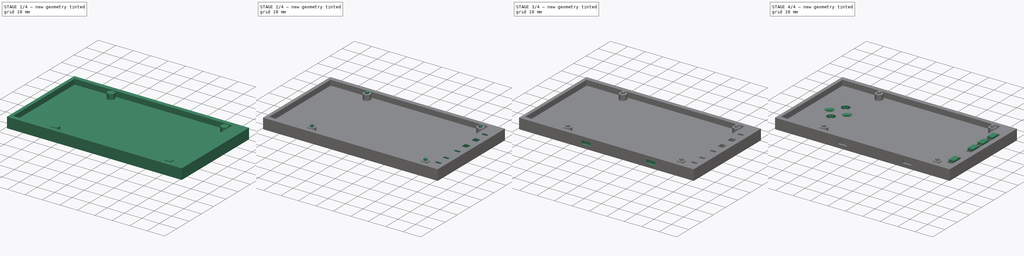
[diagram: build sequence overview — one tinted view per stage of 4, left to right]
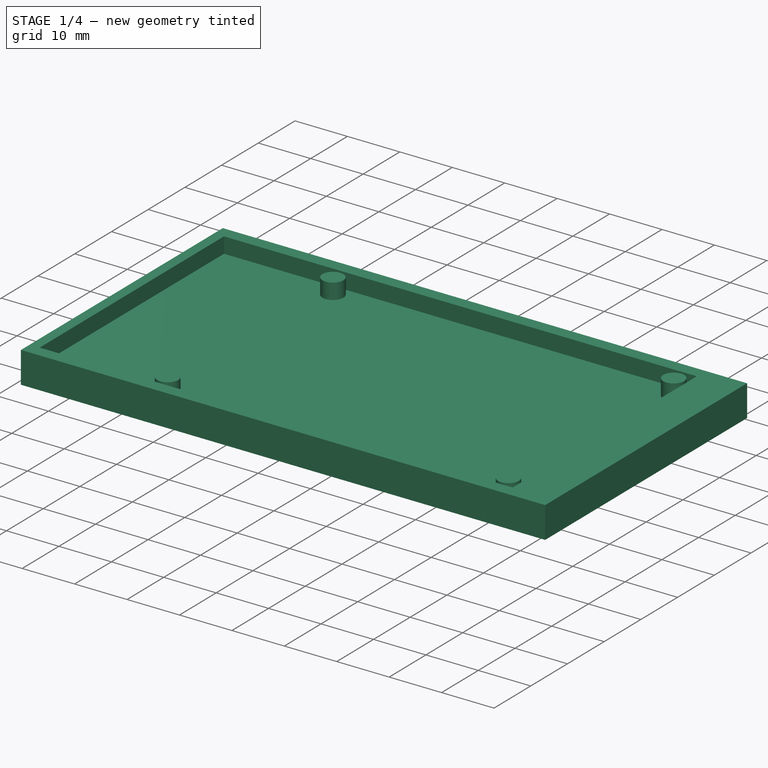
[diagram: stage 1 of 4 — iso view after this stage's code; geometry added in this stage tinted green]
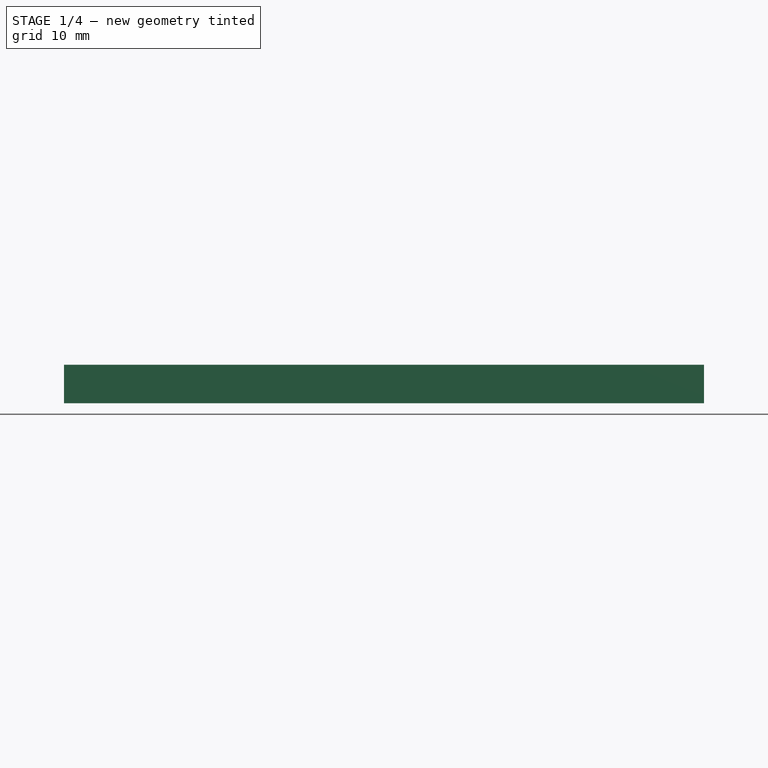
[diagram: stage 1 of 4 — front view after this stage's code; geometry added in this stage tinted green]
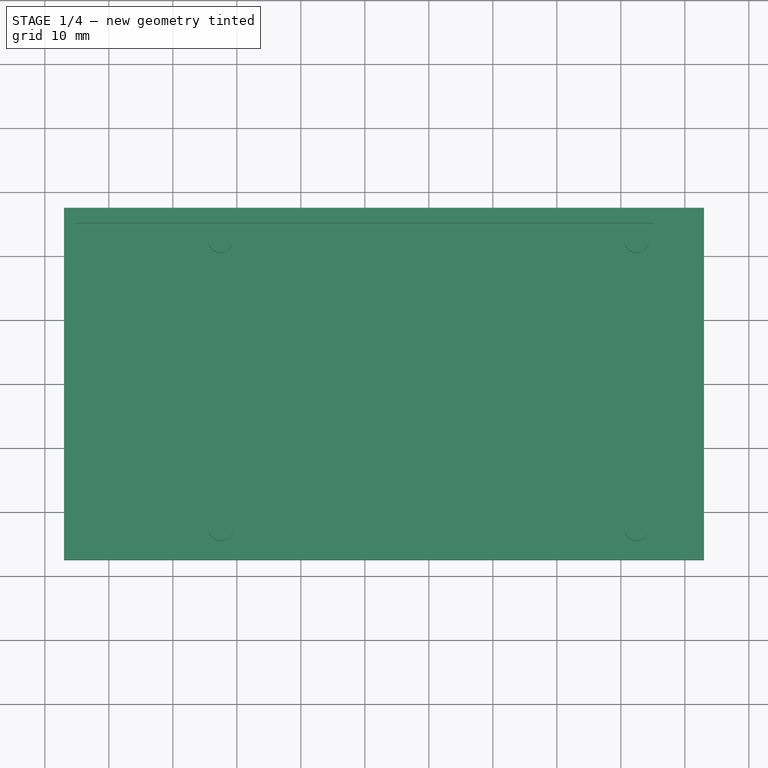
[diagram: stage 1 of 4 — top view after this stage's code; geometry added in this stage tinted green]
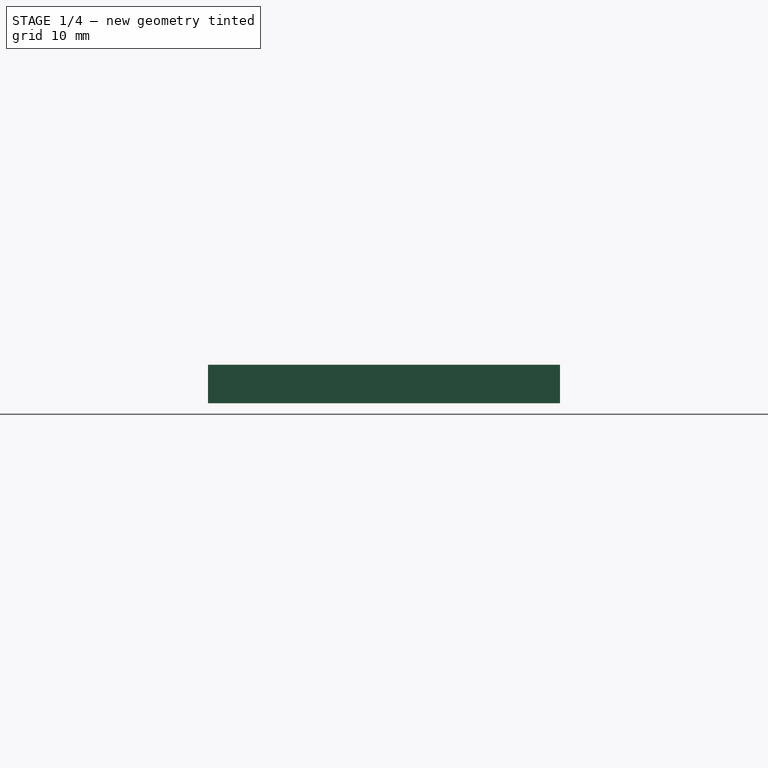
[diagram: stage 1 of 4 — right view after this stage's code; geometry added in this stage tinted green]
FCSTD DOCUMENT  (FreeCAD 0.19R24276 (Git))
Label: PCB_case_bottom_level
License: All rights reserved
LicenseURL: http://en.wikipedia.org/wiki/All_rights_reserved
objects: Sketcher::SketchObject×11, PartDesign::Pocket×7, PartDesign::Pad×4, PartDesign::Chamfer×1, PartDesign::Body×1
note: 36 computed .brp shape members not serialized (recipe doc carries the construction recipe); baked Part::Feature solids carry a one-line shape summary decoded from their .brp

FEATURE [Sketcher::SketchObject] Sketch
  FullyConstrained = true
  MapMode = 5
  Support = -> [XY_Plane]
  sketch-geometry (4):
    g0: LineSegment StartX=-57 StartY=27.5 StartZ=0 EndX=43 EndY=27.5 EndZ=0
    g1: LineSegment StartX=43 StartY=27.5 StartZ=0 EndX=43 EndY=-27.5 EndZ=0
    g2: LineSegment StartX=43 StartY=-27.5 StartZ=0 EndX=-57 EndY=-27.5 EndZ=0
    g3: LineSegment StartX=-57 StartY=-27.5 StartZ=0 EndX=-57 EndY=27.5 EndZ=0
  constraints (11):
    c: Coincident(g0,g1)
    c: Coincident(g1,g2)
    c: Coincident(g2,g3)
    c: Coincident(g3,g0)
    c: Horizontal(g0)
    c: Horizontal(g2)
    c: Vertical(g1)
    c: DistanceX(g0,g0) = 100
    c: DistanceY(g3,g3) = 55
    c: Symmetric(g0,g2,g-1)
    c: DistanceX(g0,g-1) = 57
FEATURE [PartDesign::Pad] Pad
  Direction = (1,1,1)
  Length = 6
  Length2 = 100
  Profile = -> Sketch
  Type = 0
FEATURE [Sketcher::SketchObject] Sketch001
  FullyConstrained = true
  MapMode = 5
  Placement = pos=(0,0,6) rot=(0,0,1;0rad)
  Support = -> [Pad]
  sketch-geometry (4):
    g0: LineSegment StartX=-55.1 StartY=25.1 StartZ=0 EndX=35.1 EndY=25.1 EndZ=0
    g1: LineSegment StartX=35.1 StartY=25.1 StartZ=0 EndX=35.1 EndY=-25.1 EndZ=0
    g2: LineSegment StartX=35.1 StartY=-25.1 StartZ=0 EndX=-55.1 EndY=-25.1 EndZ=0
    g3: LineSegment StartX=-55.1 StartY=-25.1 StartZ=0 EndX=-55.1 EndY=25.1 EndZ=0
  constraints (11):
    c: Coincident(g0,g1)
    c: Coincident(g1,g2)
    c: Coincident(g2,g3)
    c: Coincident(g3,g0)
    c: Horizontal(g2)
    c: Vertical(g1)
    c: DistanceY(g3,g3) = 50.2
    c: DistanceX(g0,g0) = 90.2
    c: Symmetric(g0,g2,g-1)
    c: DistanceX(g-1,g0) = 35.1
    c: Horizontal(g0)
FEATURE [PartDesign::Pocket] Pocket
  BaseFeature = -> Pad
  Length = 3
  Length2 = 100
  Profile = -> Sketch001
  Type = 0
FEATURE [Sketcher::SketchObject] Sketch002
  FullyConstrained = true
  MapMode = 5
  Placement = pos=(0,0,3) rot=(0,0,1;0rad)
  Support = -> [Pocket]
  sketch-geometry (8):
    g0: LineSegment StartX=-32.5 StartY=22.5 StartZ=0 EndX=32.5 EndY=22.5 EndZ=0
    g1: LineSegment StartX=32.5 StartY=22.5 StartZ=0 EndX=32.5 EndY=-22.5 EndZ=0
    g2: LineSegment StartX=32.5 StartY=-22.5 StartZ=0 EndX=-32.5 EndY=-22.5 EndZ=0
    g3: LineSegment StartX=-32.5 StartY=-22.5 StartZ=0 EndX=-32.5 EndY=22.5 EndZ=0
    g4: Circle CenterX=-32.5 CenterY=22.5 CenterZ=0 NormalX=0 NormalY=0 NormalZ=1 AngleXU=0 Radius=2
    g5: Circle CenterX=32.5 CenterY=22.5 CenterZ=0 NormalX=0 NormalY=0 NormalZ=1 AngleXU=0 Radius=2
    g6: Circle CenterX=-32.5 CenterY=-22.5 CenterZ=0 NormalX=0 NormalY=0 NormalZ=1 AngleXU=0 Radius=2
    g7: Circle CenterX=32.5 CenterY=-22.5 CenterZ=0 NormalX=0 NormalY=0 NormalZ=1 AngleXU=0 Radius=2
  constraints (18):
    c: Coincident(g0,g1)
    c: Coincident(g1,g2)
    c: Coincident(g2,g3)
    c: Coincident(g3,g0)
    c: Horizontal(g2)
    c: Vertical(g1)
    c: DistanceX(g0,g0) = 65
    c: DistanceY(g3,g3) = 45
    c: Symmetric(g0,g0,g-2)
    c: Symmetric(g0,g2,g-1)
    c: Radius(g7) = 2
    c: Equal(g7,g6)
    c: Equal(g7,g4)
    c: Equal(g7,g5)
    c: Coincident(g4,g0)
    c: Coincident(g5,g0)
    c: Coincident(g6,g2)
    c: Coincident(g7,g1)
FEATURE [PartDesign::Pad] Pad001
  BaseFeature = -> Pocket
  Direction = (1,1,1)
  Length = 3
  Length2 = 100
  Profile = -> Sketch002
  Type = 0
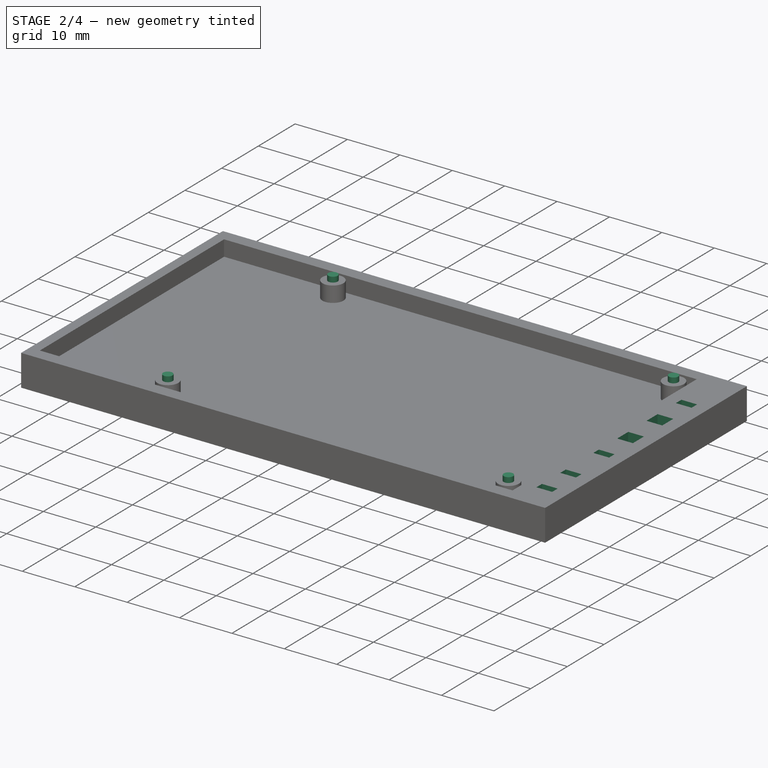
[diagram: stage 2 of 4 — iso view after this stage's code; geometry added in this stage tinted green]
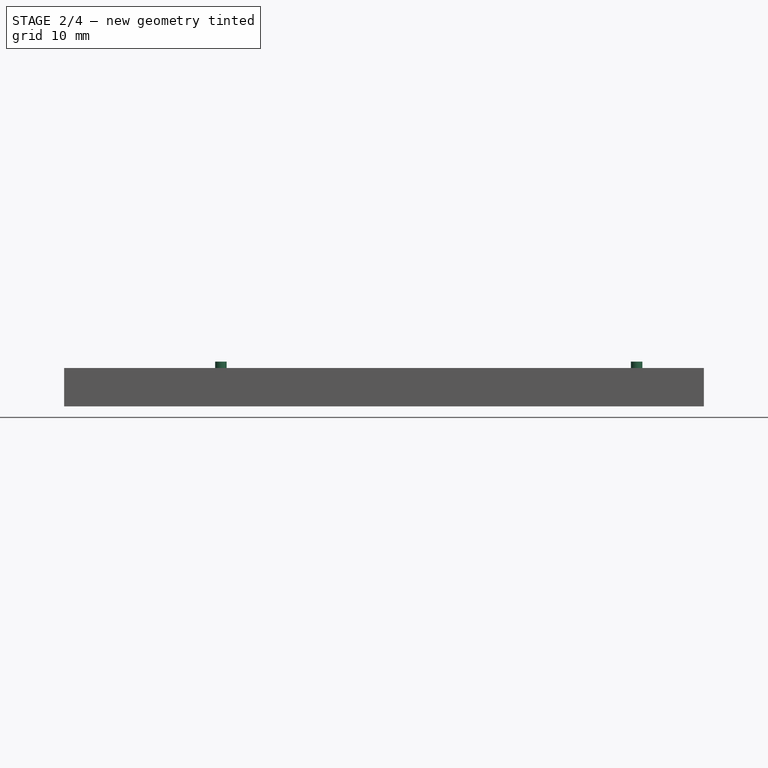
[diagram: stage 2 of 4 — front view after this stage's code; geometry added in this stage tinted green]
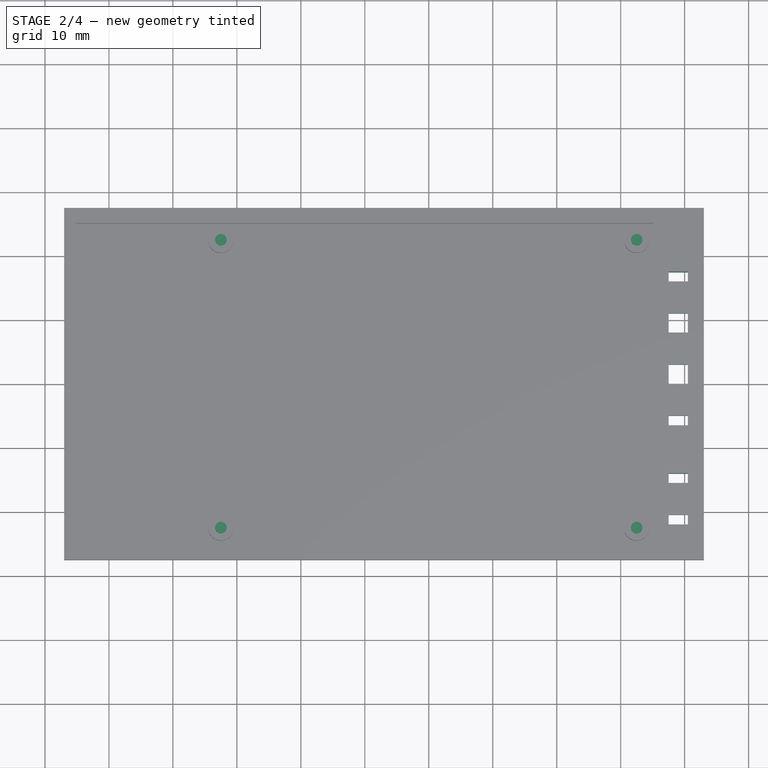
[diagram: stage 2 of 4 — top view after this stage's code; geometry added in this stage tinted green]
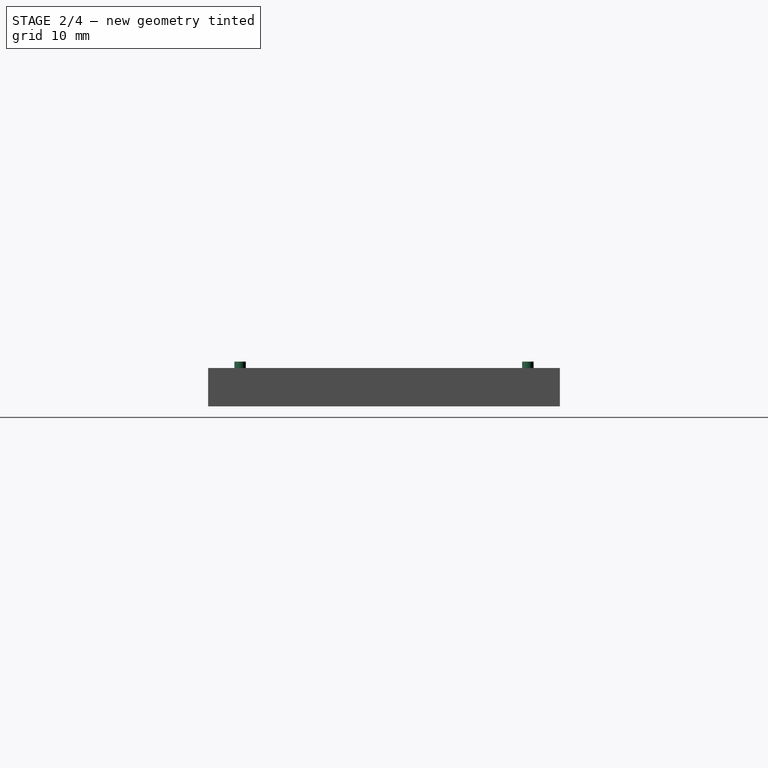
[diagram: stage 2 of 4 — right view after this stage's code; geometry added in this stage tinted green]
FEATURE [Sketcher::SketchObject] Sketch003
  FullyConstrained = true
  MapMode = 5
  Placement = pos=(0,0,6) rot=(0,0,1;0rad)
  Support = -> [Pad001]
  sketch-geometry (8):
    g0: LineSegment StartX=-32.5 StartY=22.5 StartZ=0 EndX=32.5 EndY=22.5 EndZ=0
    g1: LineSegment StartX=32.5 StartY=22.5 StartZ=0 EndX=32.5 EndY=-22.5 EndZ=0
    g2: LineSegment StartX=32.5 StartY=-22.5 StartZ=0 EndX=-32.5 EndY=-22.5 EndZ=0
    g3: LineSegment StartX=-32.5 StartY=-22.5 StartZ=0 EndX=-32.5 EndY=22.5 EndZ=0
    g4: Circle CenterX=-32.5 CenterY=22.5 CenterZ=0 NormalX=0 NormalY=0 NormalZ=1 AngleXU=0 Radius=0.9
    g5: Circle CenterX=32.5 CenterY=22.5 CenterZ=0 NormalX=0 NormalY=0 NormalZ=1 AngleXU=0 Radius=0.9
    g6: Circle CenterX=-32.5 CenterY=-22.5 CenterZ=0 NormalX=0 NormalY=0 NormalZ=1 AngleXU=0 Radius=0.9
    g7: Circle CenterX=32.5 CenterY=-22.5 CenterZ=0 NormalX=0 NormalY=0 NormalZ=1 AngleXU=0 Radius=0.9
  constraints (18):
    c: Coincident(g0,g1)
    c: Coincident(g1,g2)
    c: Coincident(g2,g3)
    c: Coincident(g3,g0)
    c: Horizontal(g2)
    c: Vertical(g1)
    c: DistanceX(g0,g0) = 65
    c: DistanceY(g3,g3) = 45
    c: Symmetric(g0,g0,g-2)
    c: Symmetric(g0,g2,g-1)
    c: Coincident(g6,g2)
    c: Coincident(g4,g0)
    c: Coincident(g5,g0)
    c: Coincident(g7,g1)
    c: Radius(g4) = 0.9
    c: Equal(g4,g6)
    c: Equal(g4,g7)
    c: Equal(g4,g5)
FEATURE [PartDesign::Pad] Pad002
  BaseFeature = -> Pad001
  Direction = (1,1,1)
  Length = 1
  Length2 = 100
  Profile = -> Sketch003
  Type = 0
FEATURE [Sketcher::SketchObject] Sketch004
  FullyConstrained = false
  MapMode = 5
  Placement = pos=(0,0,6) rot=(0,0,1;0rad)
  Support = -> [Pad002]
  sketch-geometry (25):
    g0: LineSegment StartX=37.5 StartY=22.2853 StartZ=0 EndX=37.5 EndY=-24.6559 EndZ=0
    g1: LineSegment StartX=37.5 StartY=17.5 StartZ=0 EndX=40.5 EndY=17.5 EndZ=0
    g2: LineSegment StartX=40.5 StartY=17.5 StartZ=0 EndX=40.5 EndY=16 EndZ=0
    g3: LineSegment StartX=40.5 StartY=16 StartZ=0 EndX=37.5 EndY=16 EndZ=0
    g4: LineSegment StartX=37.5 StartY=16 StartZ=0 EndX=37.5 EndY=17.5 EndZ=0
    g5: LineSegment StartX=37.5 StartY=11 StartZ=0 EndX=40.5 EndY=11 EndZ=0
    g6: LineSegment StartX=40.5 StartY=11 StartZ=0 EndX=40.5 EndY=8 EndZ=0
    g7: LineSegment StartX=40.5 StartY=8 StartZ=0 EndX=37.5 EndY=8 EndZ=0
    g8: LineSegment StartX=37.5 StartY=8 StartZ=0 EndX=37.5 EndY=11 EndZ=0
    g9: LineSegment StartX=37.5 StartY=3 StartZ=0 EndX=40.5 EndY=3 EndZ=0
    g10: LineSegment StartX=40.5 StartY=3 StartZ=0 EndX=40.5 EndY=0 EndZ=0
    g11: LineSegment StartX=40.5 StartY=0 StartZ=0 EndX=37.5 EndY=0 EndZ=0
    g12: LineSegment StartX=37.5 StartY=0 StartZ=0 EndX=37.5 EndY=3 EndZ=0
    g13: LineSegment StartX=37.5 StartY=-5 StartZ=0 EndX=40.5 EndY=-5 EndZ=0
    g14: LineSegment StartX=40.5 StartY=-5 StartZ=0 EndX=40.5 EndY=-6.5 EndZ=0
    g15: LineSegment StartX=40.5 StartY=-6.5 StartZ=0 EndX=37.5 EndY=-6.5 EndZ=0
    g16: LineSegment StartX=37.5 StartY=-6.5 StartZ=0 EndX=37.5 EndY=-5 EndZ=0
    g17: LineSegment StartX=37.5 StartY=-14 StartZ=0 EndX=40.5 EndY=-14 EndZ=0
    g18: LineSegment StartX=40.5 StartY=-14 StartZ=0 EndX=40.5 EndY=-15.5 EndZ=0
    g19: LineSegment StartX=40.5 StartY=-15.5 StartZ=0 EndX=37.5 EndY=-15.5 EndZ=0
    g20: LineSegment StartX=37.5 StartY=-15.5 StartZ=0 EndX=37.5 EndY=-14 EndZ=0
    g21: LineSegment StartX=37.5 StartY=-20.5 StartZ=0 EndX=40.5 EndY=-20.5 EndZ=0
    g22: LineSegment StartX=40.5 StartY=-20.5 StartZ=0 EndX=40.5 EndY=-22 EndZ=0
    g23: LineSegment StartX=40.5 StartY=-22 StartZ=0 EndX=37.5 EndY=-22 EndZ=0
    g24: LineSegment StartX=37.5 StartY=-22 StartZ=0 EndX=37.5 EndY=-20.5 EndZ=0
  constraints (74):
    c: Vertical(g0)
    c: Coincident(g1,g2)
    c: Coincident(g2,g3)
    c: Coincident(g3,g4)
    c: Coincident(g4,g1)
    c: Horizontal(g1)
    c: Horizontal(g3)
    c: Vertical(g2)
    c: Vertical(g4)
    c: Coincident(g5,g6)
    c: Coincident(g6,g7)
    c: Coincident(g7,g8)
    c: Coincident(g8,g5)
    c: Horizontal(g5)
    c: Horizontal(g7)
    c: Vertical(g6)
    c: Vertical(g8)
    c: Coincident(g9,g10)
    c: Coincident(g10,g11)
    c: Coincident(g11,g12)
    c: Coincident(g12,g9)
    c: Horizontal(g9)
    c: Horizontal(g11)
    c: Vertical(g10)
    c: Vertical(g12)
    c: Coincident(g13,g14)
    c: Coincident(g14,g15)
    c: Coincident(g15,g16)
    c: Coincident(g16,g13)
    c: Horizontal(g13)
    c: Horizontal(g15)
    c: Vertical(g14)
    c: Vertical(g16)
    c: Coincident(g17,g18)
    c: Coincident(g18,g19)
    c: Coincident(g19,g20)
    c: Coincident(g20,g17)
    c: Horizontal(g17)
    c: Horizontal(g19)
    c: Vertical(g18)
    c: Vertical(g20)
    c: Coincident(g21,g22)
    c: Coincident(g22,g23)
    c: Coincident(g23,g24)
    c: Coincident(g24,g21)
    c: Horizontal(g21)
    c: Horizontal(g23)
    c: Vertical(g22)
    c: Vertical(g24)
    c: DistanceX(g1,g1) = 3
    c: Equal(g1,g5)
    c: Equal(g5,g9)
    c: Equal(g9,g13)
    c: Equal(g13,g17)
    c: Equal(g17,g21)
    c: DistanceY(g2,g2) = 1.5
    c: Equal(g2,g14)
    c: Equal(g14,g18)
    c: Equal(g18,g22)
    c: DistanceY(g6,g6) = 3
    c: Equal(g6,g10)
    c: PointOnObject(g1,g0)
    c: PointOnObject(g5,g0)
    c: PointOnObject(g9,g0)
    c: PointOnObject(g13,g0)
    c: PointOnObject(g17,g0)
    c: PointOnObject(g21,g0)
    c: DistanceY(g5,g3) = 5
    c: DistanceY(g9,g7) = 5
    c: DistanceY(g13,g11) = 5
    c: DistanceY(g21,g19) = 5
    c: DistanceY(g17,g-1) = 14
    c: PointOnObject(g11,g-1)
    c: DistanceX(g0) = 37.5
FEATURE [PartDesign::Pocket] Pocket001
  BaseFeature = -> Pad002
  Length = 6
  Length2 = 100
  Profile = -> Sketch004
  Type = 0
FEATURE [Sketcher::SketchObject] Sketch005
  ExternalGeometry = -> [Pocket001]
  FullyConstrained = true
  MapMode = 5
  Placement = pos=(0,0,0) rot=(1,0,0;3.14159rad)
  Support = -> [Pocket001]
  sketch-geometry (8):
    g0: LineSegment StartX=37.5 StartY=20.5 StartZ=0 EndX=40.5 EndY=20.5 EndZ=0
    g1: LineSegment StartX=40.5 StartY=20.5 StartZ=0 EndX=40.5 EndY=15.5 EndZ=0
    g2: LineSegment StartX=40.5 StartY=15.5 StartZ=0 EndX=37.5 EndY=15.5 EndZ=0
    g3: LineSegment StartX=37.5 StartY=15.5 StartZ=0 EndX=37.5 EndY=20.5 EndZ=0
    g4: LineSegment StartX=37.5 StartY=5 StartZ=0 EndX=40.5 EndY=5 EndZ=0
    g5: LineSegment StartX=40.5 StartY=5 StartZ=0 EndX=40.5 EndY=-16 EndZ=0
    g6: LineSegment StartX=40.5 StartY=-16 StartZ=0 EndX=37.5 EndY=-16 EndZ=0
    g7: LineSegment StartX=37.5 StartY=-16 StartZ=0 EndX=37.5 EndY=5 EndZ=0
  constraints (20):
    c: Coincident(g0,g1)
    c: Coincident(g1,g2)
    c: Coincident(g2,g3)
    c: Coincident(g3,g0)
    c: Horizontal(g0)
    c: Horizontal(g2)
    c: Vertical(g3)
    c: Coincident(g4,g5)
    c: Coincident(g6,g7)
    c: Horizontal(g4)
    c: Horizontal(g6)
    c: Vertical(g7)
    c: DistanceX(g0,g0) = 3
    c: Equal(g0,g4)
    c: Coincident(g7,g4)
    c: Coincident(g6,g5)
    c: Coincident(g5,g-6)
    c: Coincident(g4,g-5)
    c: Coincident(g1,g-4)
    c: Coincident(g0,g-3)
FEATURE [PartDesign::Pocket] Pocket002
  BaseFeature = -> Pocket001
  Length = 3
  Length2 = 100
  Profile = -> Sketch005
  Type = 0
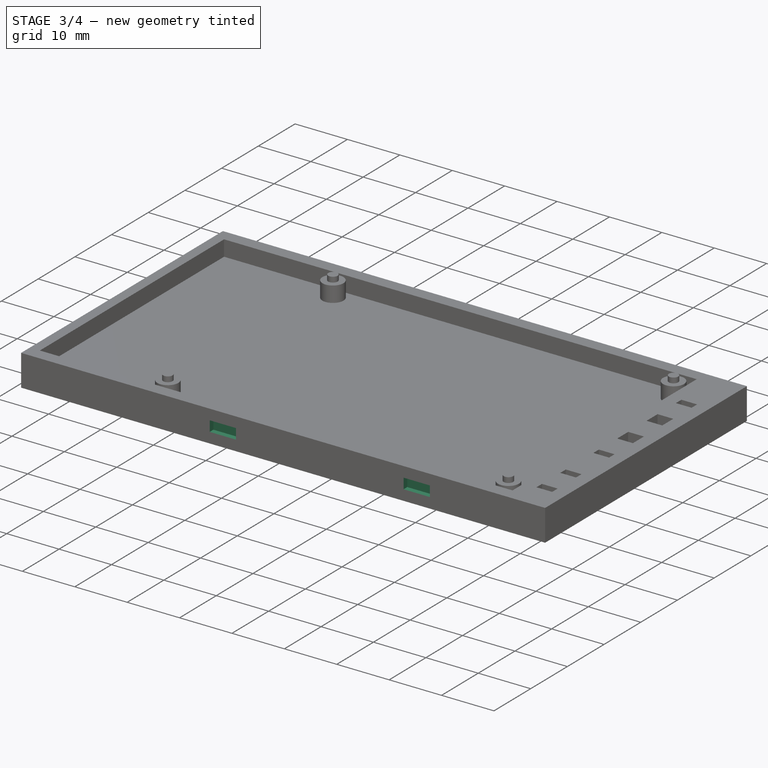
[diagram: stage 3 of 4 — iso view after this stage's code; geometry added in this stage tinted green]
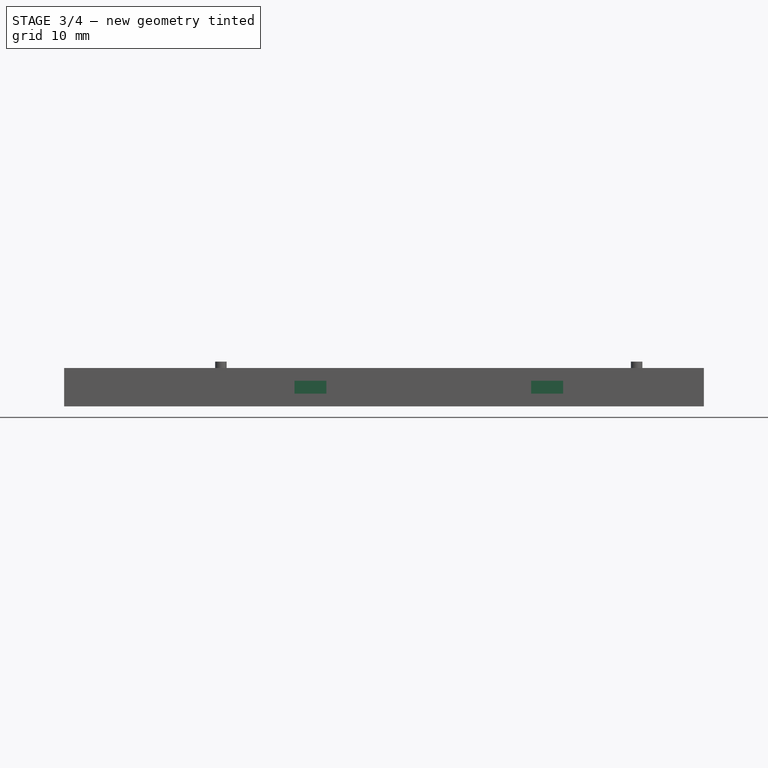
[diagram: stage 3 of 4 — front view after this stage's code; geometry added in this stage tinted green]
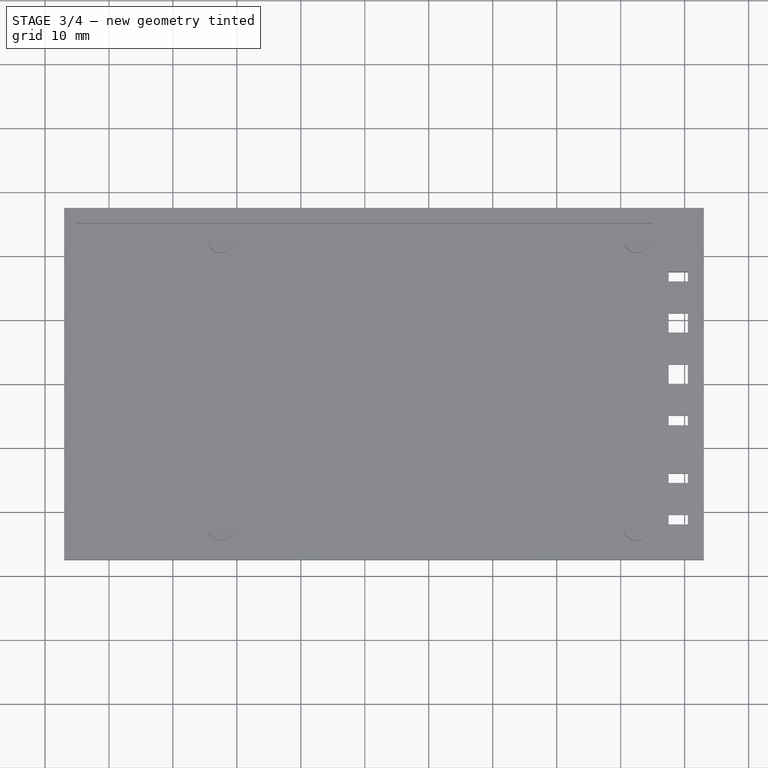
[diagram: stage 3 of 4 — top view after this stage's code; geometry added in this stage tinted green]
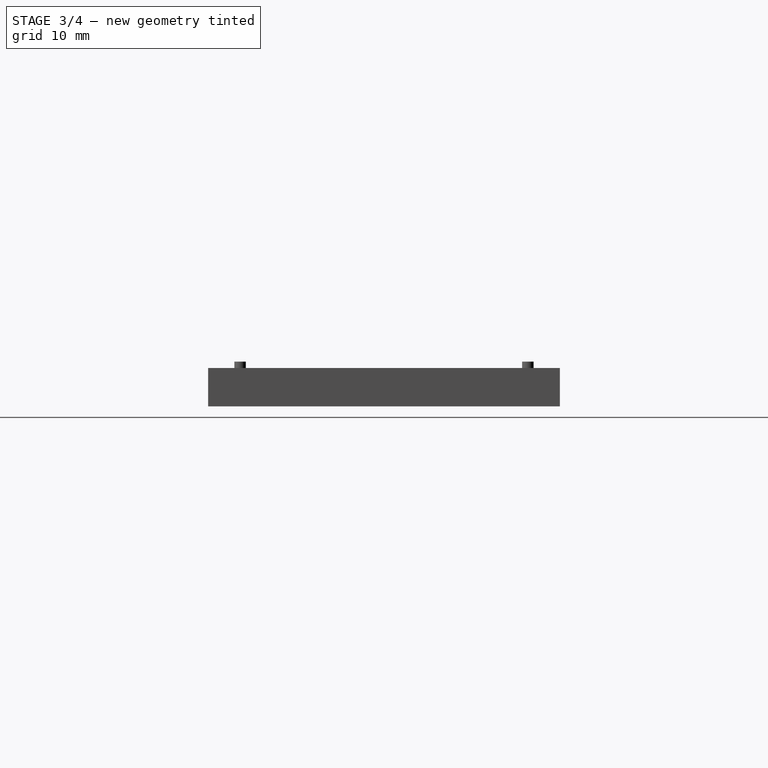
[diagram: stage 3 of 4 — right view after this stage's code; geometry added in this stage tinted green]
FEATURE [Sketcher::SketchObject] Sketch006
  FullyConstrained = true
  MapMode = 5
  Placement = pos=(0,-27.5,0) rot=(1,0,0;1.5708rad)
  Support = -> [Pocket002]
  sketch-geometry (8):
    g0: LineSegment StartX=-21 StartY=4 StartZ=0 EndX=-16 EndY=4 EndZ=0
    g1: LineSegment StartX=-16 StartY=4 StartZ=0 EndX=-16 EndY=2 EndZ=0
    g2: LineSegment StartX=-16 StartY=2 StartZ=0 EndX=-21 EndY=2 EndZ=0
    g3: LineSegment StartX=-21 StartY=2 StartZ=0 EndX=-21 EndY=4 EndZ=0
    g4: LineSegment StartX=16 StartY=4 StartZ=0 EndX=21 EndY=4 EndZ=0
    g5: LineSegment StartX=21 StartY=4 StartZ=0 EndX=21 EndY=2 EndZ=0
    g6: LineSegment StartX=21 StartY=2 StartZ=0 EndX=16 EndY=2 EndZ=0
    g7: LineSegment StartX=16 StartY=2 StartZ=0 EndX=16 EndY=4 EndZ=0
  constraints (24):
    c: Coincident(g0,g1)
    c: Coincident(g1,g2)
    c: Coincident(g2,g3)
    c: Coincident(g3,g0)
    c: Horizontal(g0)
    c: Horizontal(g2)
    c: Vertical(g1)
    c: Vertical(g3)
    c: Coincident(g4,g5)
    c: Coincident(g5,g6)
    c: Coincident(g6,g7)
    c: Coincident(g7,g4)
    c: Horizontal(g4)
    c: Horizontal(g6)
    c: Vertical(g5)
    c: Vertical(g7)
    c: DistanceX(g0,g0) = 5
    c: Equal(g0,g4)
    c: DistanceY(g1,g1) = 2
    c: Equal(g1,g5)
    c: DistanceX(g0,g-1) = 16
    c: DistanceX(g-1,g4) = 16
    c: DistanceY(g-1,g1) = 2
    c: DistanceY(g-1,g6) = 2
FEATURE [PartDesign::Pocket] Pocket003
  BaseFeature = -> Pocket002
  Length = 1
  Length2 = 100
  Profile = -> Sketch006
  Type = 0
FEATURE [Sketcher::SketchObject] Sketch007
  FullyConstrained = true
  MapMode = 5
  Placement = pos=(0,27.5,0) rot=(0,0.707107,0.707107;3.14159rad)
  Support = -> [Pocket003]
  sketch-geometry (8):
    g0: LineSegment StartX=-21 StartY=4 StartZ=0 EndX=-16 EndY=4 EndZ=0
    g1: LineSegment StartX=-16 StartY=4 StartZ=0 EndX=-16 EndY=2 EndZ=0
    g2: LineSegment StartX=-16 StartY=2 StartZ=0 EndX=-21 EndY=2 EndZ=0
    g3: LineSegment StartX=-21 StartY=2 StartZ=0 EndX=-21 EndY=4 EndZ=0
    g4: LineSegment StartX=16 StartY=4 StartZ=0 EndX=21 EndY=4 EndZ=0
    g5: LineSegment StartX=21 StartY=4 StartZ=0 EndX=21 EndY=2 EndZ=0
    g6: LineSegment StartX=21 StartY=2 StartZ=0 EndX=16 EndY=2 EndZ=0
    g7: LineSegment StartX=16 StartY=2 StartZ=0 EndX=16 EndY=4 EndZ=0
  constraints (24):
    c: Coincident(g0,g1)
    c: Coincident(g1,g2)
    c: Coincident(g2,g3)
    c: Coincident(g3,g0)
    c: Horizontal(g0)
    c: Horizontal(g2)
    c: Vertical(g1)
    c: Vertical(g3)
    c: Coincident(g4,g5)
    c: Coincident(g5,g6)
    c: Coincident(g6,g7)
    c: Coincident(g7,g4)
    c: Horizontal(g4)
    c: Horizontal(g6)
    c: Vertical(g5)
    c: Vertical(g7)
    c: DistanceX(g0,g0) = 5
    c: Equal(g0,g4)
    c: DistanceY(g1,g1) = 2
    c: Equal(g1,g7)
    c: DistanceX(g0,g-1) = 16
    c: DistanceX(g-1,g6) = 16
    c: DistanceY(g-1,g1) = 2
    c: DistanceY(g-1,g6) = 2
FEATURE [PartDesign::Pocket] Pocket004
  BaseFeature = -> Pocket003
  Length = 1
  Length2 = 100
  Profile = -> Sketch007
  Type = 0
FEATURE [Sketcher::SketchObject] Sketch008
  FullyConstrained = true
  MapMode = 5
  Placement = pos=(0,0,0) rot=(1,0,0;3.14159rad)
  Support = -> [Pocket004]
  sketch-geometry (1):
    g0: Circle CenterX=-40 CenterY=0 CenterZ=0 NormalX=0 NormalY=0 NormalZ=1 AngleXU=0 Radius=16.5
  constraints (3):
    c: PointOnObject(g0,g-1)
    c: Radius(g0) = 16.5
    c: DistanceX(g0,g-1) = 40
FEATURE [PartDesign::Pocket] Pocket005
  BaseFeature = -> Pocket004
  Length = 1
  Length2 = 100
  Profile = -> Sketch008
  Type = 0
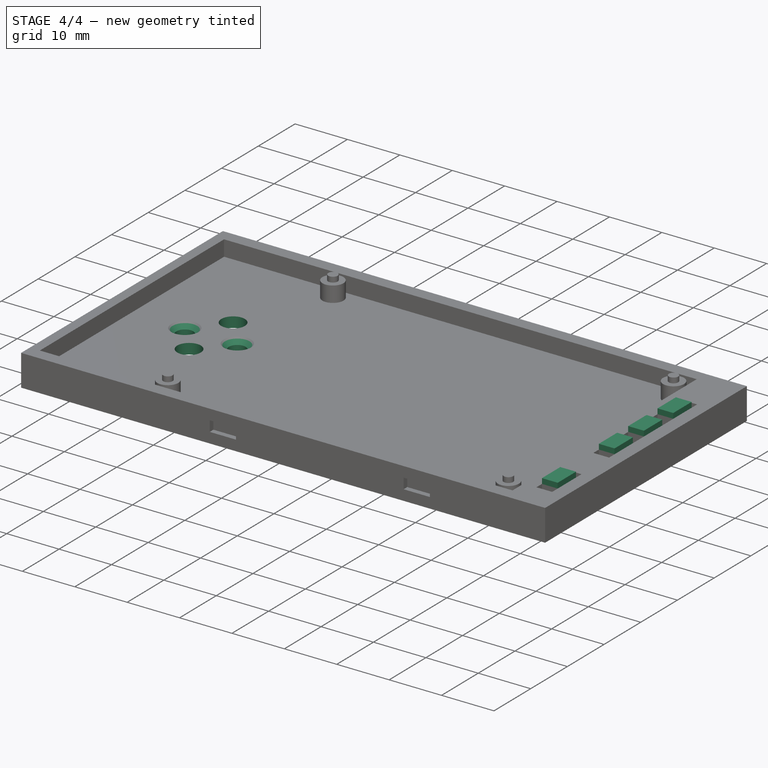
[diagram: stage 4 of 4 — iso view after this stage's code; geometry added in this stage tinted green]
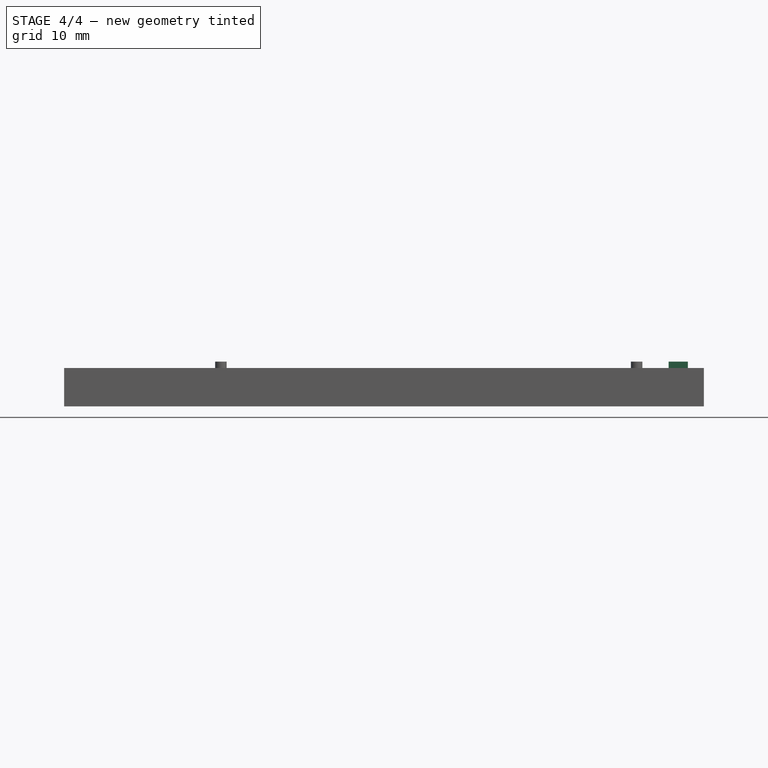
[diagram: stage 4 of 4 — front view after this stage's code; geometry added in this stage tinted green]
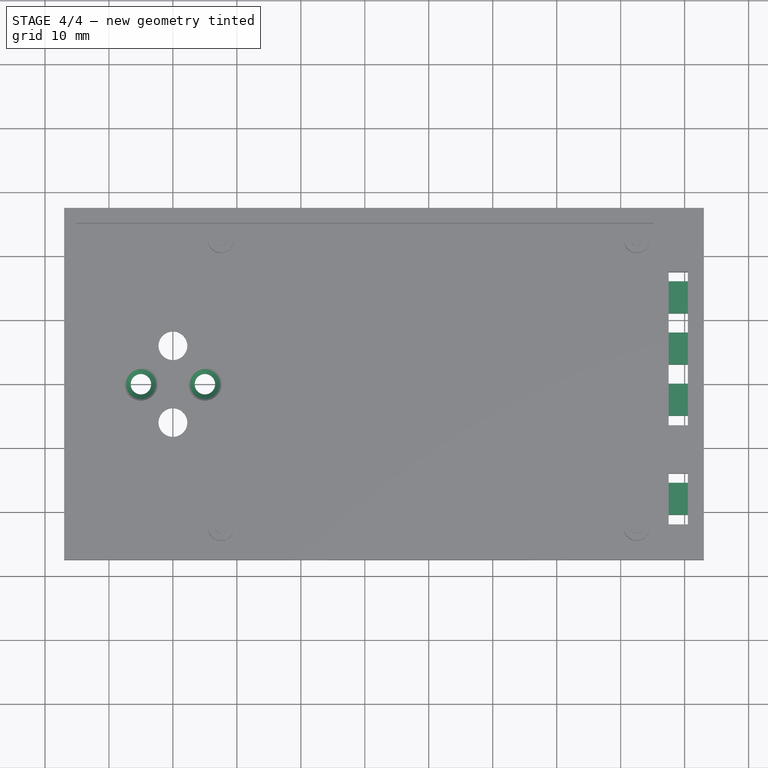
[diagram: stage 4 of 4 — top view after this stage's code; geometry added in this stage tinted green]
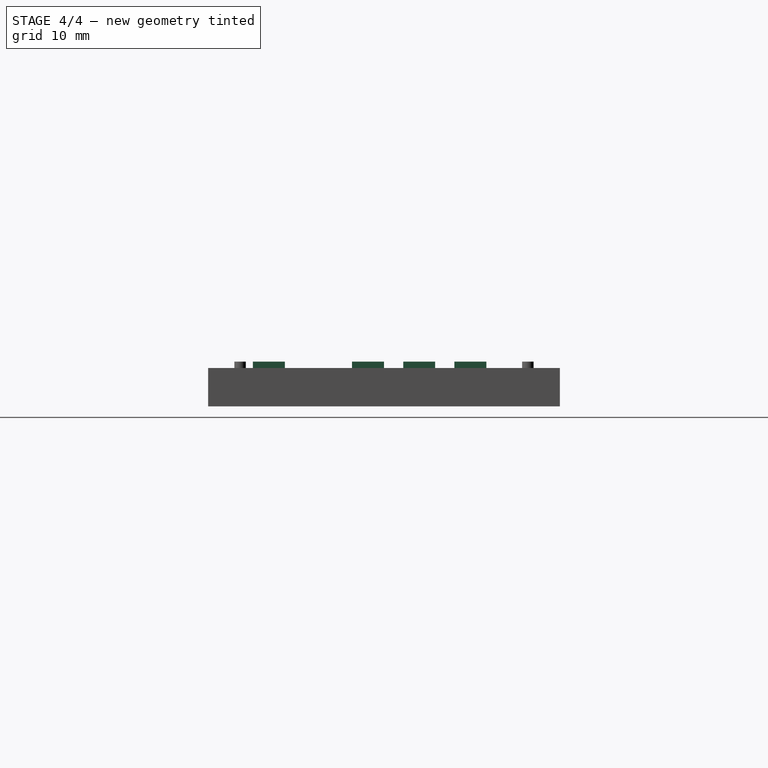
[diagram: stage 4 of 4 — right view after this stage's code; geometry added in this stage tinted green]
FEATURE [Sketcher::SketchObject] Sketch009
  FullyConstrained = false
  MapMode = 5
  Placement = pos=(0,0,1) rot=(1,0,0;3.14159rad)
  Support = -> [Pocket005]
  sketch-geometry (5):
    g0: LineSegment StartX=-40 StartY=30.4524 StartZ=0 EndX=-40 EndY=-31.51 EndZ=0
    g1: Circle CenterX=-40 CenterY=6 CenterZ=0 NormalX=0 NormalY=0 NormalZ=1 AngleXU=0 Radius=2.25
    g2: Circle CenterX=-40 CenterY=-6 CenterZ=0 NormalX=0 NormalY=0 NormalZ=1 AngleXU=0 Radius=2.25
    g3: Circle CenterX=-45 CenterY=0 CenterZ=0 NormalX=0 NormalY=0 NormalZ=1 AngleXU=0 Radius=1.6
    g4: Circle CenterX=-35 CenterY=0 CenterZ=0 NormalX=0 NormalY=0 NormalZ=1 AngleXU=0 Radius=1.6
  constraints (14):
    c: Vertical(g0)
    c: DistanceX(g0,g-1) = 40
    c: PointOnObject(g1,g0)
    c: PointOnObject(g2,g0)
    c: Radius(g1) = 2.25
    c: Equal(g1,g2)
    c: DistanceY(g-1,g1) = 6
    c: DistanceY(g2,g-1) = 6
    c: PointOnObject(g3,g-1)
    c: PointOnObject(g4,g-1)
    c: Radius(g4) = 1.6
    c: Equal(g4,g3)
    c: DistanceX(g3,g0) = 5
    c: DistanceX(g0,g4) = 5
FEATURE [PartDesign::Pocket] Pocket006
  BaseFeature = -> Pocket005
  Length = 2
  Length2 = 100
  Profile = -> Sketch009
  Type = 0
FEATURE [Sketcher::SketchObject] Sketch010
  ExternalGeometry = -> [Pocket006]
  FullyConstrained = true
  MapMode = 5
  Placement = pos=(0,0,6) rot=(0,0,1;0rad)
  Support = -> [Pocket006]
  sketch-geometry (16):
    g0: LineSegment StartX=37.5 StartY=16 StartZ=0 EndX=40.5 EndY=16 EndZ=0
    g1: LineSegment StartX=40.5 StartY=16 StartZ=0 EndX=40.5 EndY=11 EndZ=0
    g2: LineSegment StartX=40.5 StartY=11 StartZ=0 EndX=37.5 EndY=11 EndZ=0
    g3: LineSegment StartX=37.5 StartY=11 StartZ=0 EndX=37.5 EndY=16 EndZ=0
    g4: LineSegment StartX=37.5 StartY=0 StartZ=0 EndX=40.5 EndY=0 EndZ=0
    g5: LineSegment StartX=40.5 StartY=0 StartZ=0 EndX=40.5 EndY=-5 EndZ=0
    g6: LineSegment StartX=40.5 StartY=-5 StartZ=0 EndX=37.5 EndY=-5 EndZ=0
    g7: LineSegment StartX=37.5 StartY=-5 StartZ=0 EndX=37.5 EndY=0 EndZ=0
    g8: LineSegment StartX=37.5 StartY=8 StartZ=0 EndX=40.5 EndY=8 EndZ=0
    g9: LineSegment StartX=40.5 StartY=8 StartZ=0 EndX=40.5 EndY=3 EndZ=0
    g10: LineSegment StartX=40.5 StartY=3 StartZ=0 EndX=37.5 EndY=3 EndZ=0
    g11: LineSegment StartX=37.5 StartY=3 StartZ=0 EndX=37.5 EndY=8 EndZ=0
    g12: LineSegment StartX=37.5 StartY=-15.5 StartZ=0 EndX=40.5 EndY=-15.5 EndZ=0
    g13: LineSegment StartX=40.5 StartY=-15.5 StartZ=0 EndX=40.5 EndY=-20.5 EndZ=0
    g14: LineSegment StartX=40.5 StartY=-20.5 StartZ=0 EndX=37.5 EndY=-20.5 EndZ=0
    g15: LineSegment StartX=37.5 StartY=-20.5 StartZ=0 EndX=37.5 EndY=-15.5 EndZ=0
  constraints (40):
    c: Coincident(g0,g1)
    c: Coincident(g1,g2)
    c: Coincident(g2,g3)
    c: Coincident(g3,g0)
    c: Horizontal(g0)
    c: Horizontal(g2)
    c: Vertical(g1)
    c: Vertical(g3)
    c: Coincident(g4,g5)
    c: Coincident(g5,g6)
    c: Coincident(g6,g7)
    c: Coincident(g7,g4)
    c: Horizontal(g4)
    c: Horizontal(g6)
    c: Vertical(g5)
    c: Vertical(g7)
    c: Coincident(g8,g9)
    c: Coincident(g9,g10)
    c: Coincident(g10,g11)
    c: Coincident(g11,g8)
    c: Horizontal(g8)
    c: Horizontal(g10)
    c: Vertical(g9)
    c: Vertical(g11)
    c: Coincident(g12,g13)
    c: Coincident(g13,g14)
    c: Coincident(g14,g15)
    c: Coincident(g15,g12)
    c: Horizontal(g12)
    c: Horizontal(g14)
    c: Vertical(g13)
    c: Vertical(g15)
    c: Coincident(g0,g-3)
    c: Coincident(g1,g-4)
    c: Coincident(g8,g-5)
    c: Coincident(g9,g-6)
    c: Coincident(g4,g-7)
    c: Coincident(g5,g-8)
    c: Coincident(g12,g-9)
    c: Coincident(g13,g-10)
FEATURE [PartDesign::Pad] Pad003
  BaseFeature = -> Pocket006
  Direction = (1,1,1)
  Length = 1
  Length2 = 100
  Profile = -> Sketch010
  Type = 0
FEATURE [PartDesign::Chamfer] Chamfer
  Angle = 45
  Base = -> Pad003 [Edge230,Edge232]
  BaseFeature = -> Pad003
  ChamferType = 0
  FlipDirection = false
  Size = 1
  Size2 = 1
  SupportTransform = false
FEATURE [PartDesign::Body] Body
  Group = -> [Sketch,Pad,Sketch001,Pocket,Sketch002,Pad001,Sketch003,Pad002,Sketch004,Pocket001,Sketch005,Pocket002,Sketch006,Pocket003,Sketch007,Pocket004,Sketch008,Pocket005,Sketch009,Pocket006,Sketch010,Pad003,Chamfer]
  Origin = -> Origin
  Tip = -> Chamfer
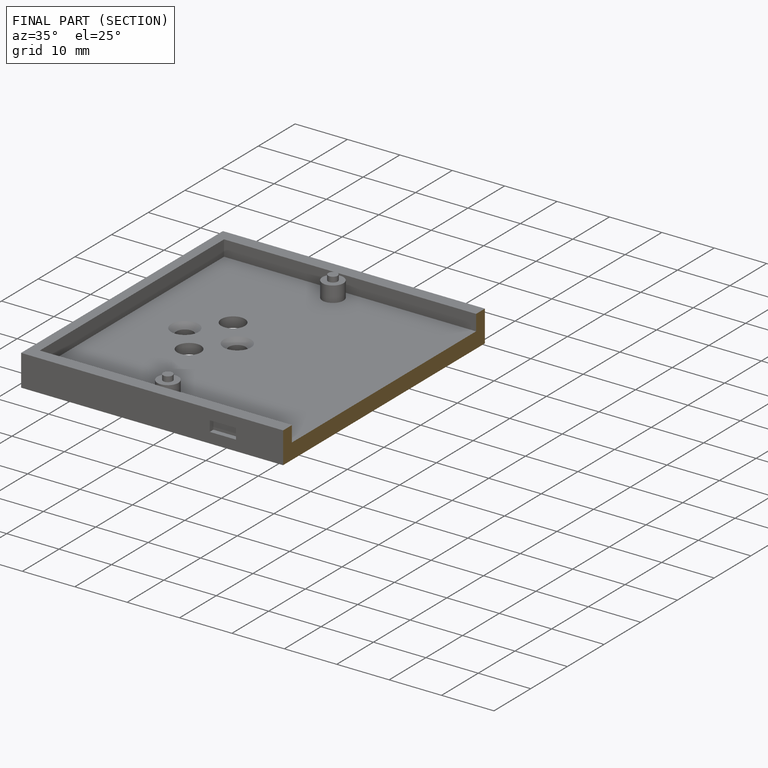
[diagram: finished part — half-section view (interior)]
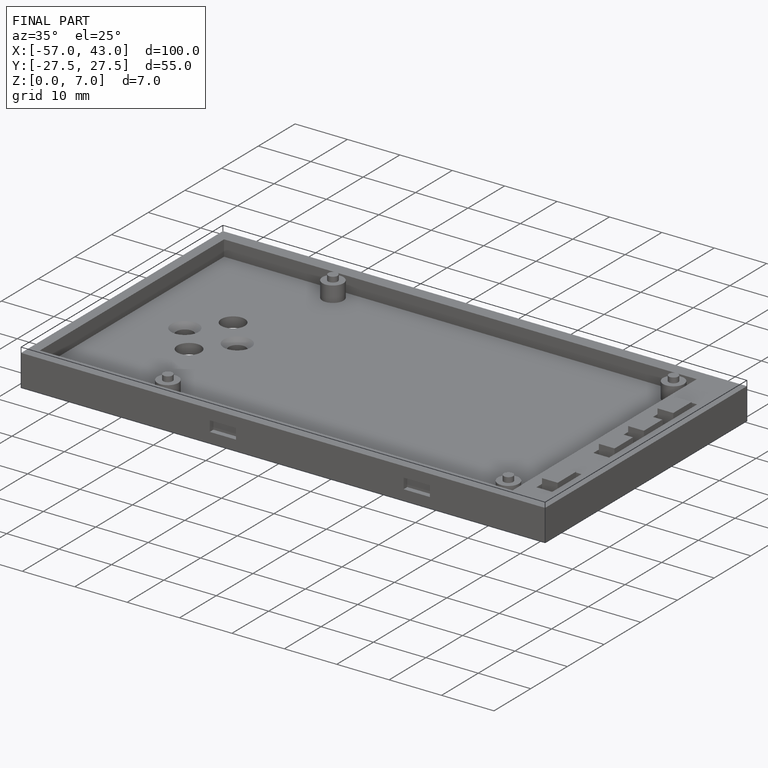
[diagram: finished part — iso view with bounding-box wireframe]
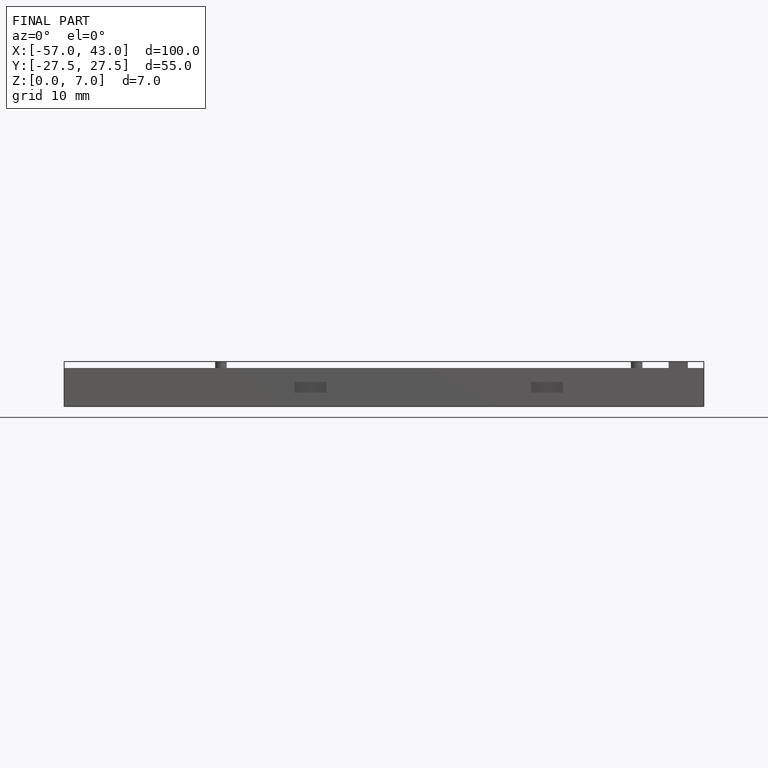
[diagram: finished part — front view with bounding-box wireframe]
